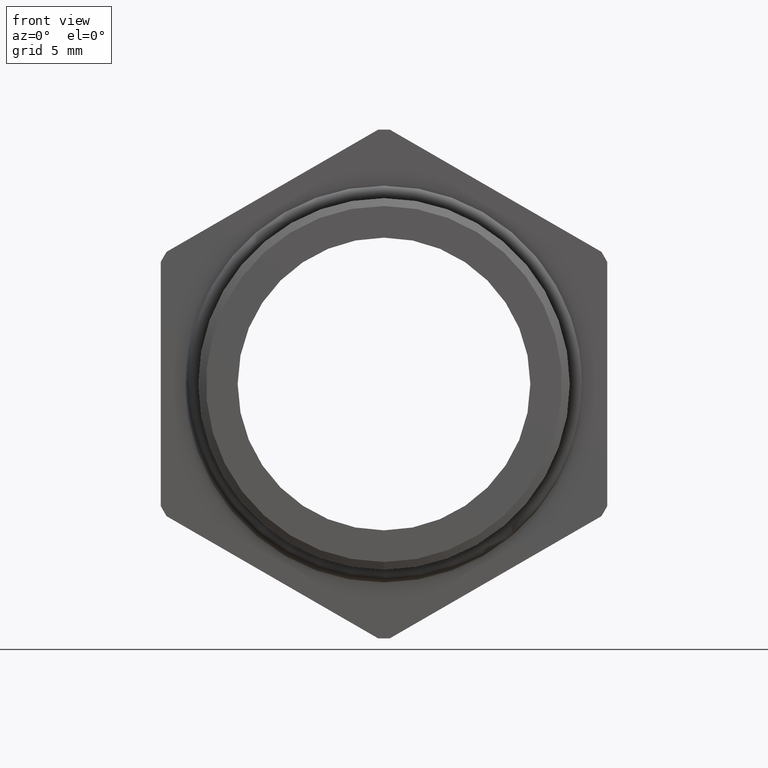
[diagram: clean part render]
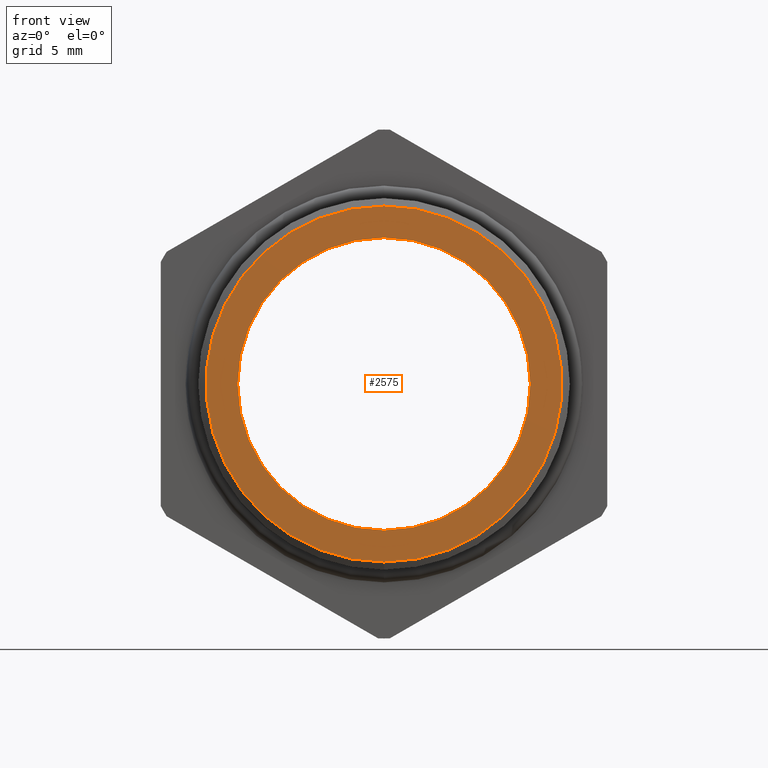
[diagram: same view with one face highlighted and labeled with its STEP entity id]
A machine part, front view. The second image highlights one B-rep face of the part: STEP entity #2575.
In plain terms, the highlighted planar face has unit normal (0, -1, -0).
Its self-contained STEP definition (entity closure, byte-faithful):
#1530 = VERTEX_POINT ( 'NONE', #5461 ) ;
#1532 = EDGE_CURVE ( 'NONE', #1530, #1533, #5460, .T. ) ;
#1533 = VERTEX_POINT ( 'NONE', #5455 ) ;
#2571 = EDGE_LOOP ( 'NONE', ( #2624, #2621 ) ) ;
#2572 = EDGE_CURVE ( 'NONE', #1533, #1530, #6916, .T. ) ;
#2573 = ORIENTED_EDGE ( 'NONE', *, *, #1532, .F. ) ;
#2574 = ORIENTED_EDGE ( 'NONE', *, *, #2572, .F. ) ;
#2575 = ADVANCED_FACE ( 'NONE', ( #6908, #6907 ), #6906, .T. ) ;
#2576 = EDGE_LOOP ( 'NONE', ( #2574, #2573 ) ) ;
#2621 = ORIENTED_EDGE ( 'NONE', *, *, #8038, .F. ) ;
#2623 = EDGE_CURVE ( 'NONE', #8037, #8040, #7061, .T. ) ;
#2624 = ORIENTED_EDGE ( 'NONE', *, *, #2623, .F. ) ;
#5455 = CARTESIAN_POINT ( 'NONE',  ( 0.0000000000000000000, -0.08244510941705197900, 0.3150000000000000000 ) ) ;
#5456 = DIRECTION ( 'NONE',  ( 0.0000000000000000000, 0.0000000000000000000, -1.000000000000000000 ) ) ;
#5457 = DIRECTION ( 'NONE',  ( 0.0000000000000000000, 1.000000000000000000, 0.0000000000000000000 ) ) ;
#5458 = CARTESIAN_POINT ( 'NONE',  ( 0.0000000000000000000, -0.08244510941705197900, 0.0000000000000000000 ) ) ;
#5459 = AXIS2_PLACEMENT_3D ( 'NONE', #5458, #5457, #5456 ) ;
#5460 = CIRCLE ( 'NONE', #5459, 0.3150000000000000000 ) ;
#5461 = CARTESIAN_POINT ( 'NONE',  ( 3.857637417314162700E-017, -0.08244510941705197900, -0.3150000000000000000 ) ) ;
#6905 = CARTESIAN_POINT ( 'NONE',  ( 0.2589880461203001900, -0.08244510941705197900, 0.0000000000000000000 ) ) ;
#6906 = PLANE ( 'NONE',  #6967 ) ;
#6907 = FACE_BOUND ( 'NONE', #2571, .T. ) ;
#6908 = FACE_OUTER_BOUND ( 'NONE', #2576, .T. ) ;
#6909 = DIRECTION ( 'NONE',  ( 0.0000000000000000000, 0.0000000000000000000, -1.000000000000000000 ) ) ;
#6910 = DIRECTION ( 'NONE',  ( 0.0000000000000000000, 1.000000000000000000, 0.0000000000000000000 ) ) ;
#6911 = CARTESIAN_POINT ( 'NONE',  ( 0.0000000000000000000, -0.08244510941705197900, 0.0000000000000000000 ) ) ;
#6912 = AXIS2_PLACEMENT_3D ( 'NONE', #6911, #6910, #6909 ) ;
#6916 = CIRCLE ( 'NONE', #6912, 0.3150000000000000000 ) ;
#6965 = DIRECTION ( 'NONE',  ( 0.0000000000000000000, 0.0000000000000000000, -1.000000000000000000 ) ) ;
#6966 = DIRECTION ( 'NONE',  ( 0.0000000000000000000, -1.000000000000000000, -0.0000000000000000000 ) ) ;
#6967 = AXIS2_PLACEMENT_3D ( 'NONE', #6905, #6966, #6965 ) ;
#7004 = CARTESIAN_POINT ( 'NONE',  ( 0.0000000000000000000, -0.08244510941705197900, 0.0000000000000000000 ) ) ;
#7058 = DIRECTION ( 'NONE',  ( 0.0000000000000000000, 0.0000000000000000000, -1.000000000000000000 ) ) ;
#7059 = DIRECTION ( 'NONE',  ( -0.0000000000000000000, -1.000000000000000000, -0.0000000000000000000 ) ) ;
#7060 = AXIS2_PLACEMENT_3D ( 'NONE', #7004, #7059, #7058 ) ;
#7061 = CIRCLE ( 'NONE', #7060, 0.2589880461203001900 ) ;
#7530 = CARTESIAN_POINT ( 'NONE',  ( 3.171688816986526800E-017, -0.08244510941705197900, 0.2589880461203001900 ) ) ;
#7531 = DIRECTION ( 'NONE',  ( 0.0000000000000000000, 0.0000000000000000000, -1.000000000000000000 ) ) ;
#7532 = DIRECTION ( 'NONE',  ( -0.0000000000000000000, -1.000000000000000000, -0.0000000000000000000 ) ) ;
#7533 = CARTESIAN_POINT ( 'NONE',  ( 0.0000000000000000000, -0.08244510941705197900, 0.0000000000000000000 ) ) ;
#7534 = AXIS2_PLACEMENT_3D ( 'NONE', #7533, #7532, #7531 ) ;
#7535 = CIRCLE ( 'NONE', #7534, 0.2589880461203001900 ) ;
#7536 = CARTESIAN_POINT ( 'NONE',  ( 0.0000000000000000000, -0.08244510941705197900, -0.2589880461203001900 ) ) ;
#8037 = VERTEX_POINT ( 'NONE', #7536 ) ;
#8038 = EDGE_CURVE ( 'NONE', #8040, #8037, #7535, .T. ) ;
#8040 = VERTEX_POINT ( 'NONE', #7530 ) ;